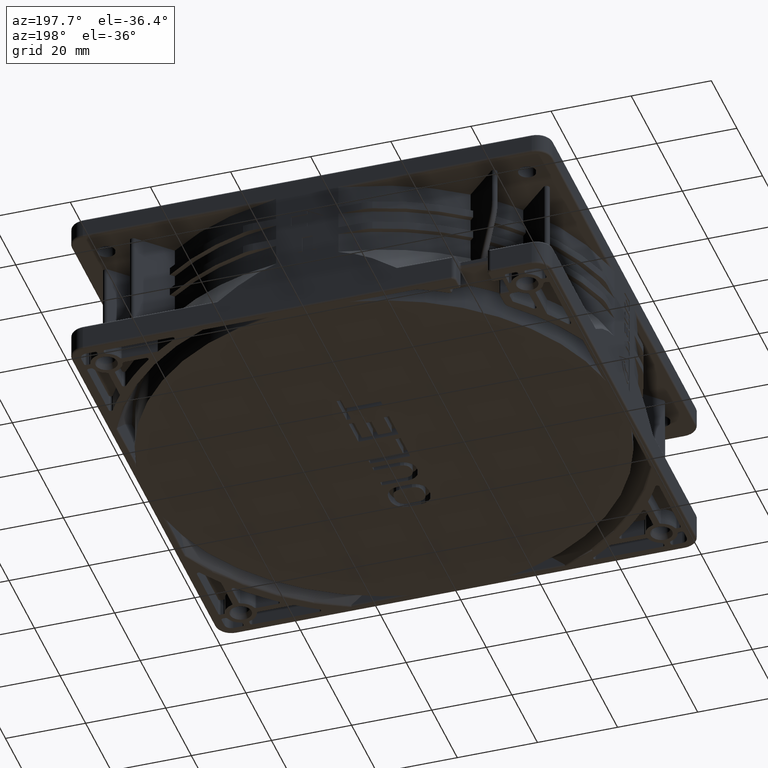
[diagram: clean part render]
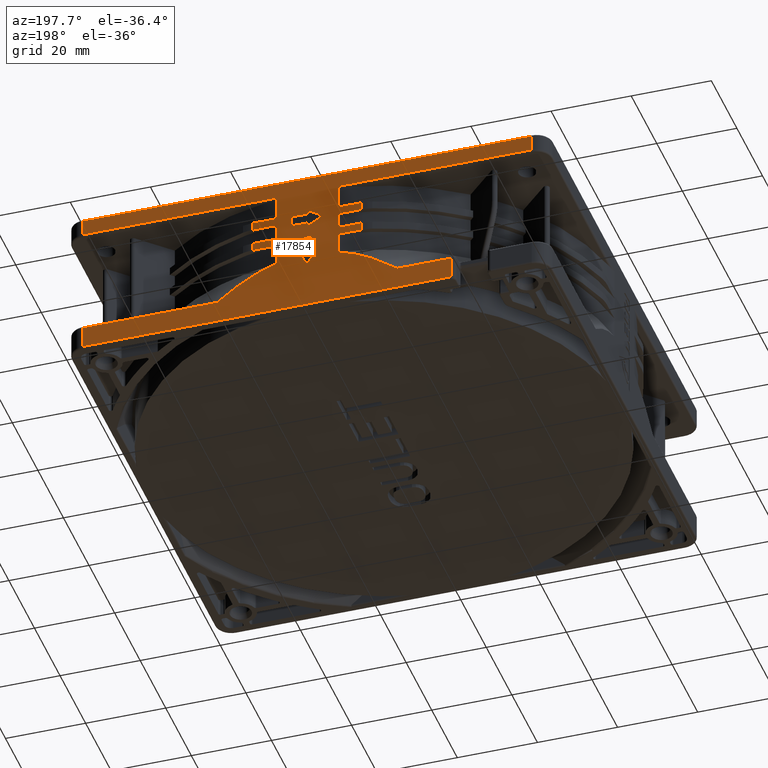
[diagram: same view with one face highlighted and labeled with its STEP entity id]
A machine part, auxiliary view. The second image highlights one B-rep face of the part: STEP entity #17854.
In plain terms, the highlighted planar face has unit normal (0, 1, 0).
Its self-contained STEP definition (entity closure, byte-faithful):
#1810=DIRECTION('',(-1.E0,-7.225864845616E-13,-1.499270352994E-13));
#1811=VECTOR('',#1810,9.194158375918E1);
#1812=CARTESIAN_POINT('',(5.600004662780E1,5.999999999973E1,-3.750000010173E1));
#1813=LINE('',#1812,#1811);
#2219=DIRECTION('',(-5.728391461507E-6,5.617421354186E-11,9.999999999836E-1));
#2220=VECTOR('',#2219,5.500000318349E0);
#2221=CARTESIAN_POINT('',(-3.594153713139E1,5.999999999966E1,
-3.750000010174E1));
#2222=LINE('',#2221,#2220);
#2227=DIRECTION('',(-5.000000000001E-1,0.E0,-8.660254037844E-1));
#2228=VECTOR('',#2227,4.629999999998E0);
#2229=CARTESIAN_POINT('',(2.330237581373E0,6.E1,-2.164E1));
#2230=LINE('',#2229,#2228);
#2231=DIRECTION('',(-5.000000000001E-1,0.E0,8.660254037844E-1));
#2232=VECTOR('',#2231,4.629999999998E0);
#2233=CARTESIAN_POINT('',(1.523758137357E-2,6.E1,-2.564969761952E1));
#2234=LINE('',#2233,#2232);
#2235=DIRECTION('',(-8.672832031977E-1,0.E0,4.978150715387E-1));
#2236=VECTOR('',#2235,4.637491869317E0);
#2237=CARTESIAN_POINT('',(1.969987693819E-3,6.E1,-1.454958961249E1));
#2238=LINE('',#2237,#2236);
#2239=DIRECTION('',(8.660254037845E-1,0.E0,4.999999999999E-1));
#2240=VECTOR('',#2239,4.641952531605E0);
#2241=CARTESIAN_POINT('',(-4.020048815531E0,6.E1,-1.224097626580E1));
#2242=LINE('',#2241,#2240);
#2243=DIRECTION('',(8.477781514399E-6,-4.941501661666E-11,-9.999999999641E-1));
#2244=VECTOR('',#2243,5.500000101924E0);
#2245=CARTESIAN_POINT('',(5.6E1,6.E1,-3.2E1));
#2246=LINE('',#2245,#2244);
#2590=DIRECTION('',(1.E0,2.273954715843E-12,-1.611825306345E-8));
#2591=VECTOR('',#2590,1.343308729831E1);
#2592=CARTESIAN_POINT('',(-3.594156863754E1,5.999999999997E1,
-3.199999978348E1));
#2593=LINE('',#2592,#2591);
#2625=CARTESIAN_POINT('',(-2.250848133923E1,6.E1,-3.2E1));
#2626=CARTESIAN_POINT('',(-2.122308320130E1,6.E1,-3.097522977696E1));
#2627=CARTESIAN_POINT('',(-1.867433499538E1,6.E1,-2.911235273384E1));
#2628=CARTESIAN_POINT('',(-1.544462140803E1,6.E1,-2.709535955821E1));
#2629=CARTESIAN_POINT('',(-1.134312877940E1,6.E1,-2.505695421964E1));
#2630=CARTESIAN_POINT('',(-8.948715364443E0,6.E1,-2.421289036741E1));
#2631=CARTESIAN_POINT('',(-7.762087348128E0,6.E1,-2.386733052655E1));
#2689=DIRECTION('',(-4.400987680065E-14,-2.171828403036E-13,1.E0));
#2690=VECTOR('',#2689,5.267330526550E0);
#2691=CARTESIAN_POINT('',(-7.762087348128E0,6.E1,-2.386733052655E1));
#2692=LINE('',#2691,#2690);
#2698=DIRECTION('',(-1.E0,-1.230477246996E-14,0.E0));
#2699=VECTOR('',#2698,5.774529659081E0);
#2700=CARTESIAN_POINT('',(-7.762087348129E0,6.E1,-1.86E1));
#2701=LINE('',#2700,#2699);
#2716=DIRECTION('',(-3.224087663511E-13,0.E0,1.E0));
#2717=VECTOR('',#2716,2.E0);
#2718=CARTESIAN_POINT('',(-1.353661700721E1,6.E1,-1.86E1));
#2719=LINE('',#2718,#2717);
#2720=DIRECTION('',(1.E0,0.E0,0.E0));
#2721=VECTOR('',#2720,5.774529659080E0);
#2722=CARTESIAN_POINT('',(-1.353661700721E1,6.E1,-1.66E1));
#2723=LINE('',#2722,#2721);
#2747=DIRECTION('',(0.E0,0.E0,1.E0));
#2748=VECTOR('',#2747,4.E0);
#2749=CARTESIAN_POINT('',(-7.762087348130E0,6.E1,-1.66E1));
#2750=LINE('',#2749,#2748);
#2756=DIRECTION('',(-1.E0,0.E0,0.E0));
#2757=VECTOR('',#2756,5.774529659080E0);
#2758=CARTESIAN_POINT('',(-7.762087348130E0,6.E1,-1.26E1));
#2759=LINE('',#2758,#2757);
#2774=DIRECTION('',(0.E0,0.E0,1.E0));
#2775=VECTOR('',#2774,2.E0);
#2776=CARTESIAN_POINT('',(-1.353661700721E1,6.E1,-1.26E1));
#2777=LINE('',#2776,#2775);
#2778=DIRECTION('',(1.E0,0.E0,0.E0));
#2779=VECTOR('',#2778,5.774529659080E0);
#2780=CARTESIAN_POINT('',(-1.353661700721E1,6.E1,-1.06E1));
#2781=LINE('',#2780,#2779);
#2833=DIRECTION('',(0.E0,0.E0,1.E0));
#2834=VECTOR('',#2833,6.1E0);
#2835=CARTESIAN_POINT('',(-7.762087348130E0,6.E1,-1.06E1));
#2836=LINE('',#2835,#2834);
#2841=DIRECTION('',(-1.E0,0.E0,0.E0));
#2842=VECTOR('',#2841,4.823791265131E1);
#2843=CARTESIAN_POINT('',(-7.762087348130E0,6.E1,-4.5E0));
#2844=LINE('',#2843,#2842);
#2860=DIRECTION('',(-2.343547578221E-11,0.E0,1.E0));
#2861=VECTOR('',#2860,4.E0);
#2862=CARTESIAN_POINT('',(-5.599999999944E1,6.E1,-4.5E0));
#2863=LINE('',#2862,#2861);
#2887=DIRECTION('',(1.E0,0.E0,0.E0));
#2888=VECTOR('',#2887,1.119999999992E2);
#2889=CARTESIAN_POINT('',(-5.599999999953E1,6.E1,-5.E-1));
#2890=LINE('',#2889,#2888);
#7224=DIRECTION('',(1.E0,-3.840023991603E-14,-2.535264458545E-14));
#7225=VECTOR('',#7224,3.349151866077E1);
#7226=CARTESIAN_POINT('',(2.250848133923E1,6.E1,-3.2E1));
#7227=LINE('',#7226,#7225);
#7469=DIRECTION('',(0.E0,0.E0,-1.E0));
#7470=VECTOR('',#7469,6.1E0);
#7471=CARTESIAN_POINT('',(7.762087348130E0,6.E1,-4.5E0));
#7472=LINE('',#7471,#7470);
#7477=DIRECTION('',(-1.E0,0.E0,0.E0));
#7478=VECTOR('',#7477,4.823791265170E1);
#7479=CARTESIAN_POINT('',(5.599999999983E1,6.E1,-4.5E0));
#7480=LINE('',#7479,#7478);
#7499=DIRECTION('',(1.E0,0.E0,0.E0));
#7500=VECTOR('',#7499,5.774529659080E0);
#7501=CARTESIAN_POINT('',(7.762087348130E0,6.E1,-1.06E1));
#7502=LINE('',#7501,#7500);
#7530=DIRECTION('',(-1.E0,0.E0,0.E0));
#7531=VECTOR('',#7530,5.774529659080E0);
#7532=CARTESIAN_POINT('',(1.353661700721E1,6.E1,-1.26E1));
#7533=LINE('',#7532,#7531);
#7539=DIRECTION('',(0.E0,0.E0,-1.E0));
#7540=VECTOR('',#7539,2.E0);
#7541=CARTESIAN_POINT('',(1.353661700721E1,6.E1,-1.06E1));
#7542=LINE('',#7541,#7540);
#7547=DIRECTION('',(0.E0,0.E0,-1.E0));
#7548=VECTOR('',#7547,4.E0);
#7549=CARTESIAN_POINT('',(7.762087348130E0,6.E1,-1.26E1));
#7550=LINE('',#7549,#7548);
#7565=DIRECTION('',(1.E0,0.E0,0.E0));
#7566=VECTOR('',#7565,5.774529659080E0);
#7567=CARTESIAN_POINT('',(7.762087348130E0,6.E1,-1.66E1));
#7568=LINE('',#7567,#7566);
#7596=DIRECTION('',(-1.E0,0.E0,0.E0));
#7597=VECTOR('',#7596,5.774529659080E0);
#7598=CARTESIAN_POINT('',(1.353661700721E1,6.E1,-1.86E1));
#7599=LINE('',#7598,#7597);
#7605=DIRECTION('',(0.E0,0.E0,-1.E0));
#7606=VECTOR('',#7605,2.E0);
#7607=CARTESIAN_POINT('',(1.353661700721E1,6.E1,-1.66E1));
#7608=LINE('',#7607,#7606);
#7613=DIRECTION('',(-2.208924850914E-14,2.090890698575E-13,-1.E0));
#7614=VECTOR('',#7613,5.267330526550E0);
#7615=CARTESIAN_POINT('',(7.762087348130E0,6.E1,-1.86E1));
#7616=LINE('',#7615,#7614);
#7649=CARTESIAN_POINT('',(7.762087348129E0,6.E1,-2.386733052655E1));
#7650=CARTESIAN_POINT('',(9.283628669961E0,6.E1,-2.431042100631E1));
#7651=CARTESIAN_POINT('',(1.241059157811E1,6.E1,-2.548243720015E1));
#7652=CARTESIAN_POINT('',(1.730609450446E1,6.E1,-2.813692605431E1));
#7653=CARTESIAN_POINT('',(2.075004299941E1,6.E1,-3.059810342296E1));
#7654=CARTESIAN_POINT('',(2.250848133923E1,6.E1,-3.2E1));
#7682=DIRECTION('',(4.189359970042E-11,0.E0,-1.E0));
#7683=VECTOR('',#7682,4.E0);
#7684=CARTESIAN_POINT('',(5.599999999966E1,6.E1,-5.E-1));
#7685=LINE('',#7684,#7683);
#9391=DIRECTION('',(-1.E0,0.E0,0.E0));
#9392=VECTOR('',#9391,1.E0);
#9393=CARTESIAN_POINT('',(2.330237581373E0,6.E1,-2.164E1));
#9394=LINE('',#9393,#9392);
#9407=DIRECTION('',(-1.E0,0.E0,0.E0));
#9408=VECTOR('',#9407,2.63E0);
#9409=CARTESIAN_POINT('',(1.330237581373E0,6.E1,-1.764E1));
#9410=LINE('',#9409,#9408);
#9419=DIRECTION('',(0.E0,0.E0,1.E0));
#9420=VECTOR('',#9419,4.E0);
#9421=CARTESIAN_POINT('',(1.330237581373E0,6.E1,-2.164E1));
#9422=LINE('',#9421,#9420);
#9435=DIRECTION('',(0.E0,0.E0,-1.E0));
#9436=VECTOR('',#9435,4.E0);
#9437=CARTESIAN_POINT('',(-1.299762418627E0,6.E1,-1.764E1));
#9438=LINE('',#9437,#9436);
#9447=DIRECTION('',(-1.E0,0.E0,2.486899575163E-14));
#9448=VECTOR('',#9447,9.999999999990E-1);
#9449=CARTESIAN_POINT('',(-1.299762418627E0,6.E1,-2.164E1));
#9450=LINE('',#9449,#9448);
#9467=DIRECTION('',(0.E0,0.E0,1.E0));
#9468=VECTOR('',#9467,2.630000143893E0);
#9469=CARTESIAN_POINT('',(4.E0,6.E1,-1.355000014389E1));
#9470=LINE('',#9469,#9468);
#9483=DIRECTION('',(0.E0,0.E0,1.E0));
#9484=VECTOR('',#9483,1.000000000001E0);
#9485=CARTESIAN_POINT('',(0.E0,6.E1,-1.092E1));
#9486=LINE('',#9485,#9484);
#9495=DIRECTION('',(-1.E0,0.E0,0.E0));
#9496=VECTOR('',#9495,4.E0);
#9497=CARTESIAN_POINT('',(4.E0,6.E1,-1.092E1));
#9498=LINE('',#9497,#9496);
#9522=DIRECTION('',(-1.550549475926E-3,0.E0,9.999987978974E-1));
#9523=VECTOR('',#9522,9.995906241148E-1);
#9524=CARTESIAN_POINT('',(1.969987693819E-3,6.E1,-1.454958961249E1));
#9525=LINE('',#9524,#9523);
#9534=DIRECTION('',(1.E0,0.E0,1.152332719784E-8));
#9535=VECTOR('',#9534,3.999579927025E0);
#9536=CARTESIAN_POINT('',(4.200729754575E-4,6.E1,-1.355000018998E1));
#9537=LINE('',#9536,#9535);
#12343=CARTESIAN_POINT('',(5.600009733510E1,5.999999999882E1,
-3.750000020345E1));
#12344=VERTEX_POINT('',#12343);
#12345=CARTESIAN_POINT('',(-3.594149428422E1,5.999999999812E1,
-3.750000020345E1));
#12346=VERTEX_POINT('',#12345);
#12349=CARTESIAN_POINT('',(-3.594156863754E1,5.999999999997E1,
-3.199999978348E1));
#12350=VERTEX_POINT('',#12349);
#12354=CARTESIAN_POINT('',(5.6E1,6.E1,-3.2E1));
#12355=VERTEX_POINT('',#12354);
#12356=CARTESIAN_POINT('',(2.250848133923E1,6.E1,-3.2E1));
#12357=VERTEX_POINT('',#12356);
#12358=VERTEX_POINT('',#7649);
#12359=CARTESIAN_POINT('',(7.762087348130E0,6.E1,-1.86E1));
#12360=VERTEX_POINT('',#12359);
#12361=CARTESIAN_POINT('',(1.353661700721E1,6.E1,-1.86E1));
#12362=VERTEX_POINT('',#12361);
#12363=CARTESIAN_POINT('',(1.353661700721E1,6.E1,-1.66E1));
#12364=VERTEX_POINT('',#12363);
#12365=CARTESIAN_POINT('',(7.762087348130E0,6.E1,-1.66E1));
#12366=VERTEX_POINT('',#12365);
#12367=CARTESIAN_POINT('',(7.762087348130E0,6.E1,-1.26E1));
#12368=VERTEX_POINT('',#12367);
#12369=CARTESIAN_POINT('',(1.353661700721E1,6.E1,-1.26E1));
#12370=VERTEX_POINT('',#12369);
#12371=CARTESIAN_POINT('',(1.353661700721E1,6.E1,-1.06E1));
#12372=VERTEX_POINT('',#12371);
#12373=CARTESIAN_POINT('',(7.762087348130E0,6.E1,-1.06E1));
#12374=VERTEX_POINT('',#12373);
#12375=CARTESIAN_POINT('',(7.762087348130E0,6.E1,-4.5E0));
#12376=VERTEX_POINT('',#12375);
#12377=CARTESIAN_POINT('',(5.599999999983E1,6.E1,-4.5E0));
#12378=VERTEX_POINT('',#12377);
#12379=CARTESIAN_POINT('',(5.599999999966E1,6.E1,-5.E-1));
#12380=VERTEX_POINT('',#12379);
#12381=CARTESIAN_POINT('',(-5.599999999953E1,6.E1,-5.E-1));
#12382=VERTEX_POINT('',#12381);
#12383=CARTESIAN_POINT('',(-5.599999999944E1,6.E1,-4.5E0));
#12384=VERTEX_POINT('',#12383);
#12385=CARTESIAN_POINT('',(-7.762087348130E0,6.E1,-4.5E0));
#12386=VERTEX_POINT('',#12385);
#12387=CARTESIAN_POINT('',(-7.762087348130E0,6.E1,-1.06E1));
#12388=VERTEX_POINT('',#12387);
#12389=CARTESIAN_POINT('',(-1.353661700721E1,6.E1,-1.06E1));
#12390=VERTEX_POINT('',#12389);
#12391=CARTESIAN_POINT('',(-1.353661700721E1,6.E1,-1.26E1));
#12392=VERTEX_POINT('',#12391);
#12393=CARTESIAN_POINT('',(-7.762087348130E0,6.E1,-1.26E1));
#12394=VERTEX_POINT('',#12393);
#12395=CARTESIAN_POINT('',(-7.762087348130E0,6.E1,-1.66E1));
#12396=VERTEX_POINT('',#12395);
#12397=CARTESIAN_POINT('',(-1.353661700721E1,6.E1,-1.66E1));
#12398=VERTEX_POINT('',#12397);
#12399=CARTESIAN_POINT('',(-1.353661700721E1,6.E1,-1.86E1));
#12400=VERTEX_POINT('',#12399);
#12401=CARTESIAN_POINT('',(-7.762087348129E0,6.E1,-1.86E1));
#12402=VERTEX_POINT('',#12401);
#12403=CARTESIAN_POINT('',(-7.762087348128E0,6.E1,-2.386733052655E1));
#12404=VERTEX_POINT('',#12403);
#12405=VERTEX_POINT('',#2625);
#12406=CARTESIAN_POINT('',(2.330237581373E0,6.E1,-2.164E1));
#12407=CARTESIAN_POINT('',(1.330237581373E0,6.E1,-2.164E1));
#12408=VERTEX_POINT('',#12406);
#12409=VERTEX_POINT('',#12407);
#12410=CARTESIAN_POINT('',(1.523758137357E-2,6.E1,-2.564969761952E1));
#12411=VERTEX_POINT('',#12410);
#12412=CARTESIAN_POINT('',(-2.299762418626E0,6.E1,-2.164E1));
#12413=VERTEX_POINT('',#12412);
#12414=CARTESIAN_POINT('',(-1.299762418627E0,6.E1,-2.164E1));
#12415=VERTEX_POINT('',#12414);
#12416=CARTESIAN_POINT('',(-1.299762418627E0,6.E1,-1.764E1));
#12417=VERTEX_POINT('',#12416);
#12418=CARTESIAN_POINT('',(1.330237581373E0,6.E1,-1.764E1));
#12419=VERTEX_POINT('',#12418);
#12420=CARTESIAN_POINT('',(4.E0,6.E1,-1.355000014389E1));
#12421=CARTESIAN_POINT('',(4.E0,6.E1,-1.092E1));
#12422=VERTEX_POINT('',#12420);
#12423=VERTEX_POINT('',#12421);
#12424=CARTESIAN_POINT('',(4.200729754575E-4,6.E1,-1.355000018998E1));
#12425=VERTEX_POINT('',#12424);
#12426=CARTESIAN_POINT('',(1.969987693819E-3,6.E1,-1.454958961249E1));
#12427=VERTEX_POINT('',#12426);
#12428=CARTESIAN_POINT('',(-4.020048815531E0,6.E1,-1.224097626580E1));
#12429=VERTEX_POINT('',#12428);
#12430=CARTESIAN_POINT('',(0.E0,6.E1,-9.919999999999E0));
#12431=VERTEX_POINT('',#12430);
#12432=CARTESIAN_POINT('',(0.E0,6.E1,-1.092E1));
#12433=VERTEX_POINT('',#12432);
#17757=CARTESIAN_POINT('',(-6.E1,6.E1,-3.816648840647E1));
#17758=DIRECTION('',(0.E0,1.E0,0.E0));
#17759=DIRECTION('',(0.E0,0.E0,1.E0));
#17760=AXIS2_PLACEMENT_3D('',#17757,#17758,#17759);
#17761=PLANE('',#17760);
#17762=ORIENTED_EDGE('',*,*,#17747,.F.);
#17763=ORIENTED_EDGE('',*,*,#16405,.F.);
#17765=ORIENTED_EDGE('',*,*,#17764,.F.);
#17767=ORIENTED_EDGE('',*,*,#17766,.F.);
#17769=ORIENTED_EDGE('',*,*,#17768,.F.);
#17771=ORIENTED_EDGE('',*,*,#17770,.F.);
#17773=ORIENTED_EDGE('',*,*,#17772,.F.);
#17775=ORIENTED_EDGE('',*,*,#17774,.F.);
#17777=ORIENTED_EDGE('',*,*,#17776,.F.);
#17779=ORIENTED_EDGE('',*,*,#17778,.F.);
#17781=ORIENTED_EDGE('',*,*,#17780,.F.);
#17783=ORIENTED_EDGE('',*,*,#17782,.F.);
#17785=ORIENTED_EDGE('',*,*,#17784,.F.);
#17787=ORIENTED_EDGE('',*,*,#17786,.F.);
#17789=ORIENTED_EDGE('',*,*,#17788,.F.);
#17791=ORIENTED_EDGE('',*,*,#17790,.F.);
#17793=ORIENTED_EDGE('',*,*,#17792,.F.);
#17795=ORIENTED_EDGE('',*,*,#17794,.F.);
#17797=ORIENTED_EDGE('',*,*,#17796,.F.);
#17799=ORIENTED_EDGE('',*,*,#17798,.F.);
#17801=ORIENTED_EDGE('',*,*,#17800,.F.);
#17803=ORIENTED_EDGE('',*,*,#17802,.F.);
#17805=ORIENTED_EDGE('',*,*,#17804,.F.);
#17807=ORIENTED_EDGE('',*,*,#17806,.F.);
#17809=ORIENTED_EDGE('',*,*,#17808,.F.);
#17811=ORIENTED_EDGE('',*,*,#17810,.F.);
#17813=ORIENTED_EDGE('',*,*,#17812,.F.);
#17815=ORIENTED_EDGE('',*,*,#17814,.F.);
#17817=ORIENTED_EDGE('',*,*,#17816,.F.);
#17819=ORIENTED_EDGE('',*,*,#17818,.F.);
#17820=EDGE_LOOP('',(#17762,#17763,#17765,#17767,#17769,#17771,#17773,#17775,
#17777,#17779,#17781,#17783,#17785,#17787,#17789,#17791,#17793,#17795,#17797,
#17799,#17801,#17803,#17805,#17807,#17809,#17811,#17813,#17815,#17817,#17819));
#17821=FACE_OUTER_BOUND('',#17820,.F.);
#17823=ORIENTED_EDGE('',*,*,#17822,.F.);
#17825=ORIENTED_EDGE('',*,*,#17824,.T.);
#17827=ORIENTED_EDGE('',*,*,#17826,.T.);
#17829=ORIENTED_EDGE('',*,*,#17828,.F.);
#17831=ORIENTED_EDGE('',*,*,#17830,.F.);
#17833=ORIENTED_EDGE('',*,*,#17832,.F.);
#17835=ORIENTED_EDGE('',*,*,#17834,.F.);
#17836=EDGE_LOOP('',(#17823,#17825,#17827,#17829,#17831,#17833,#17835));
#17837=FACE_BOUND('',#17836,.F.);
#17839=ORIENTED_EDGE('',*,*,#17838,.F.);
#17841=ORIENTED_EDGE('',*,*,#17840,.F.);
#17843=ORIENTED_EDGE('',*,*,#17842,.F.);
#17845=ORIENTED_EDGE('',*,*,#17844,.T.);
#17847=ORIENTED_EDGE('',*,*,#17846,.T.);
#17849=ORIENTED_EDGE('',*,*,#17848,.F.);
#17851=ORIENTED_EDGE('',*,*,#17850,.F.);
#17852=EDGE_LOOP('',(#17839,#17841,#17843,#17845,#17847,#17849,#17851));
#17853=FACE_BOUND('',#17852,.F.);
#17854=ADVANCED_FACE('',(#17821,#17837,#17853),#17761,.T.);
#2632=B_SPLINE_CURVE_WITH_KNOTS('',3,(#2625,#2626,#2627,#2628,#2629,#2630,
#2631),.UNSPECIFIED.,.F.,.F.,(4,1,1,1,4),(0.E0,2.5E-1,5.E-1,7.5E-1,1.E0),
.UNSPECIFIED.);
#7655=B_SPLINE_CURVE_WITH_KNOTS('',3,(#7649,#7650,#7651,#7652,#7653,#7654),
.UNSPECIFIED.,.F.,.F.,(4,1,1,4),(0.E0,3.333333333333E-1,6.666666666667E-1,1.E0),
.UNSPECIFIED.);
#16405=EDGE_CURVE('',#12344,#12346,#1813,.T.);
#17747=EDGE_CURVE('',#12346,#12350,#2222,.T.);
#17764=EDGE_CURVE('',#12355,#12344,#2246,.T.);
#17766=EDGE_CURVE('',#12357,#12355,#7227,.T.);
#17768=EDGE_CURVE('',#12358,#12357,#7655,.T.);
#17770=EDGE_CURVE('',#12360,#12358,#7616,.T.);
#17772=EDGE_CURVE('',#12362,#12360,#7599,.T.);
#17774=EDGE_CURVE('',#12364,#12362,#7608,.T.);
#17776=EDGE_CURVE('',#12366,#12364,#7568,.T.);
#17778=EDGE_CURVE('',#12368,#12366,#7550,.T.);
#17780=EDGE_CURVE('',#12370,#12368,#7533,.T.);
#17782=EDGE_CURVE('',#12372,#12370,#7542,.T.);
#17784=EDGE_CURVE('',#12374,#12372,#7502,.T.);
#17786=EDGE_CURVE('',#12376,#12374,#7472,.T.);
#17788=EDGE_CURVE('',#12378,#12376,#7480,.T.);
#17790=EDGE_CURVE('',#12380,#12378,#7685,.T.);
#17792=EDGE_CURVE('',#12382,#12380,#2890,.T.);
#17794=EDGE_CURVE('',#12384,#12382,#2863,.T.);
#17796=EDGE_CURVE('',#12386,#12384,#2844,.T.);
#17798=EDGE_CURVE('',#12388,#12386,#2836,.T.);
#17800=EDGE_CURVE('',#12390,#12388,#2781,.T.);
#17802=EDGE_CURVE('',#12392,#12390,#2777,.T.);
#17804=EDGE_CURVE('',#12394,#12392,#2759,.T.);
#17806=EDGE_CURVE('',#12396,#12394,#2750,.T.);
#17808=EDGE_CURVE('',#12398,#12396,#2723,.T.);
#17810=EDGE_CURVE('',#12400,#12398,#2719,.T.);
#17812=EDGE_CURVE('',#12402,#12400,#2701,.T.);
#17814=EDGE_CURVE('',#12404,#12402,#2692,.T.);
#17816=EDGE_CURVE('',#12405,#12404,#2632,.T.);
#17818=EDGE_CURVE('',#12350,#12405,#2593,.T.);
#17822=EDGE_CURVE('',#12408,#12409,#9394,.T.);
#17824=EDGE_CURVE('',#12408,#12411,#2230,.T.);
#17826=EDGE_CURVE('',#12411,#12413,#2234,.T.);
#17828=EDGE_CURVE('',#12415,#12413,#9450,.T.);
#17830=EDGE_CURVE('',#12417,#12415,#9438,.T.);
#17832=EDGE_CURVE('',#12419,#12417,#9410,.T.);
#17834=EDGE_CURVE('',#12409,#12419,#9422,.T.);
#17838=EDGE_CURVE('',#12422,#12423,#9470,.T.);
#17840=EDGE_CURVE('',#12425,#12422,#9537,.T.);
#17842=EDGE_CURVE('',#12427,#12425,#9525,.T.);
#17844=EDGE_CURVE('',#12427,#12429,#2238,.T.);
#17846=EDGE_CURVE('',#12429,#12431,#2242,.T.);
#17848=EDGE_CURVE('',#12433,#12431,#9486,.T.);
#17850=EDGE_CURVE('',#12423,#12433,#9498,.T.);